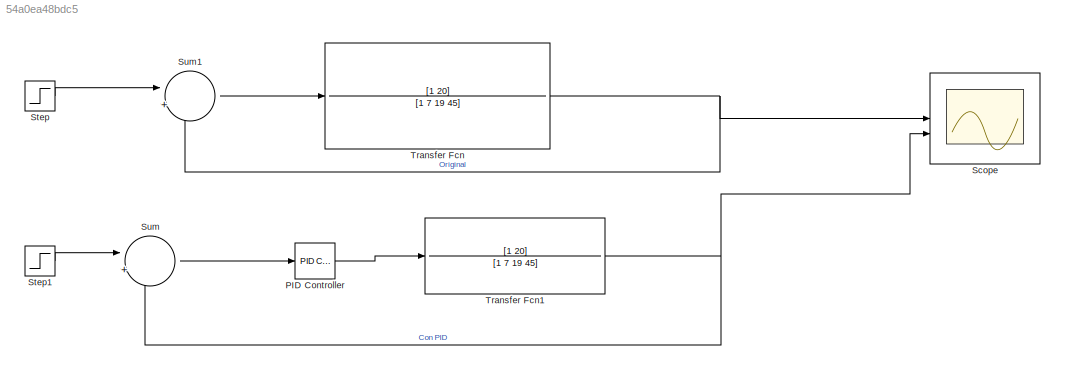
MODEL slx_54a0ea48bdc5
KIND model
CONFIG AbsTol = auto
CONFIG EnableMultiTasking = off
CONFIG FixedStep = auto
CONFIG MaxStep = auto
CONFIG MinStep = auto
CONFIG RelTol = 1e-3
CONFIG SampleTimeConstraint = Unconstrained
CONFIG SolverName = VariableStepAuto
CONFIG StartTime = 0.0
CONFIG StopTime = 10.0
BLOCK [Reference] PID Controller  REF=slpidlib/PID Controller
  LibrarySourceBlock = simulink/Continuous/PID Controller
  SourceBlock = slpidlib/PID Controller
  SourceType = PID 1dof
BLOCK [Scope] Scope
  ActiveDisplayYMaximum = 1.44354429162804
  ActiveDisplayYMinimum = -0.10673540904783596
  Floating = off
  GraphicalSettings = {"AxesScalingProperties":{"AlignXAxis":"Center","AlignYAxis":"Center","AutoScaleXAxisLimits":false,"AxesScaling":"Manual","AxesScalingNumUpdates":10,"ExpandOnly":true,"ScaleAxesLimitsAtStop":false,"XAxisDataRange":100,"YAxisDataRange":80},"DisplayProperties":{"ColorOrder":["auto","auto","auto","auto","auto","auto","auto","auto","auto","auto","auto","auto","auto","auto","auto","auto","auto","auto",...<+2123ch>
  MultipleDisplayCache = [{"MaxYLimMag":1.3952517306082888,"MaxYLimReal":1.44354429162804,"MinYLimMag":0,"MinYLimReal":-0.10673540904783596,"PlotAsMagnitudePhase":false,"ShowGrid":true,"ShowLegend":false,"Title":"%<SignalLabel>","YLabel":""}]
  NumInputPorts = 2
  ScopeFrameLocation = window
  WasSavedAsWebScope = on
  WindowPosition = [198.000000,190.000000,560.000000,420.000000,]
BLOCK [Step] Step
  SampleTime = 0
  Time = 0
BLOCK [Step] Step1
  SampleTime = 0
  Time = 0
BLOCK [Sum] Sum
  Inputs = |+-
BLOCK [Sum] Sum1
  Inputs = |+-
BLOCK [TransferFcn] Transfer Fcn
  Denominator = [1 7 19 45]
  Numerator = [1 20]
BLOCK [TransferFcn] Transfer Fcn1
  Denominator = [1 7 19 45]
  Numerator = [1 20]
LINE PID Controller:1 -> Transfer Fcn1:1
LINE Step1:1 -> Sum:1
LINE Step:1 -> Sum1:1
LINE Sum1:1 -> Transfer Fcn:1
LINE Sum:1 -> PID Controller:1
NET Transfer Fcn1:1 -> Scope:2, Sum:2
NET Transfer Fcn:1 -> Scope:1, Sum1:2
note: NET lines group one-source signal fan-out (src -> all destinations, sorted); 1:1 wires keep LINE
